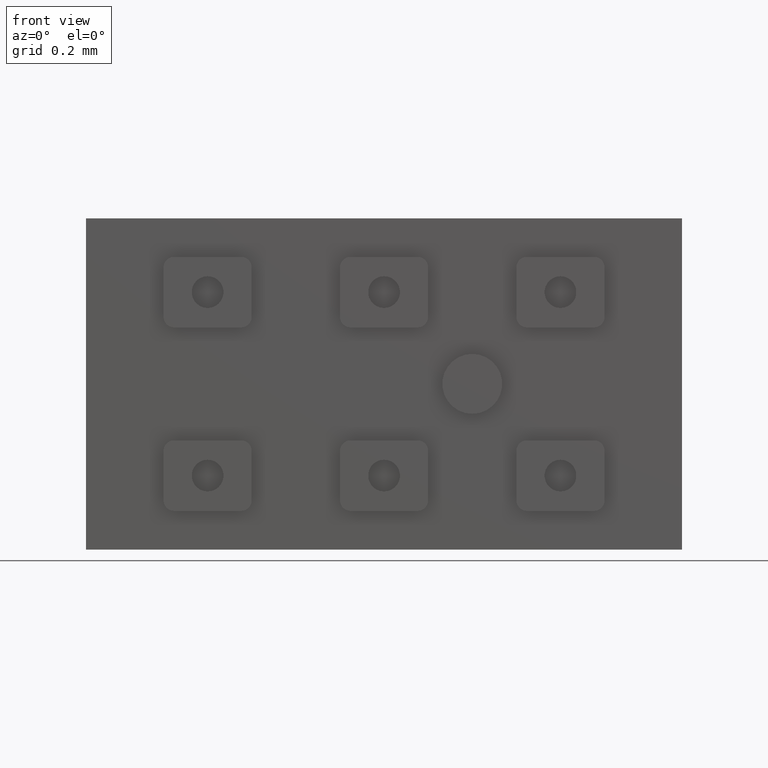
[diagram: clean part render]
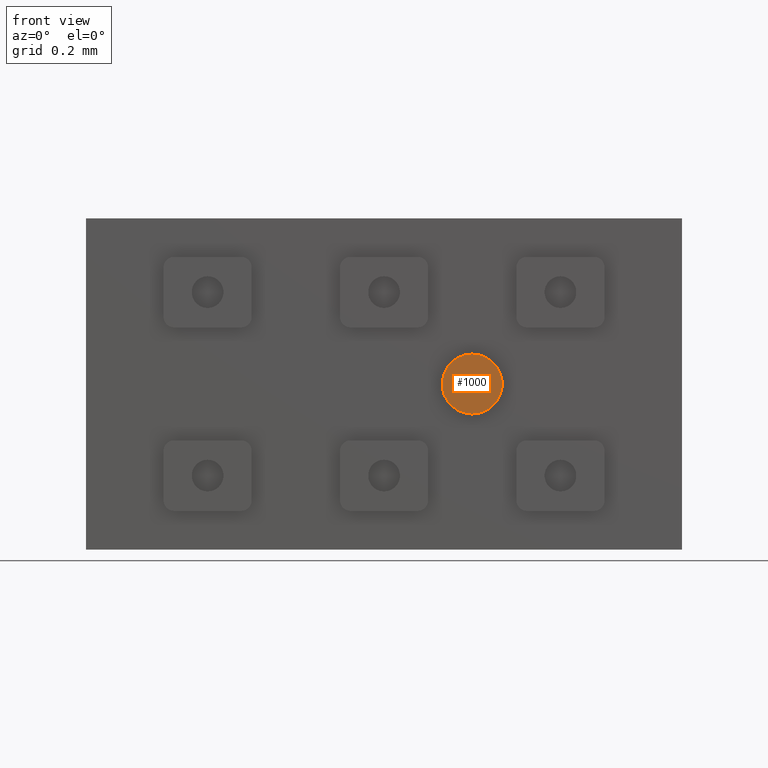
[diagram: same view with one face highlighted and labeled with its STEP entity id]
A machine part, front view. The second image highlights one B-rep face of the part: STEP entity #1000.
In plain terms, the highlighted planar face has unit normal (0, -1, 0).
Its self-contained STEP definition (entity closure, byte-faithful):
#199 = CARTESIAN_POINT ( 'NONE',  ( 0.2500000000000000000, -0.3749999999999999445, 0.000000000000000000 ) ) ;
#312 = VERTEX_POINT ( 'NONE', #651 ) ;
#396 = FACE_OUTER_BOUND ( 'NONE', #636, .T. ) ;
#572 = CIRCLE ( 'NONE', #1004, 0.08500000000000003386 ) ;
#636 = EDGE_LOOP ( 'NONE', ( #2334, #1322 ) ) ;
#651 = CARTESIAN_POINT ( 'NONE',  ( 0.2500000000000000000, -0.3749999999999999445, 0.08500000000000003386 ) ) ;
#687 = CARTESIAN_POINT ( 'NONE',  ( 0.2500000000000000000, -0.3749999999999999445, 0.000000000000000000 ) ) ;
#818 = EDGE_CURVE ( 'NONE', #312, #1636, #901, .T. ) ;
#825 = DIRECTION ( 'NONE',  ( 0.000000000000000000, -1.000000000000000000, 0.000000000000000000 ) ) ;
#901 = CIRCLE ( 'NONE', #1642, 0.08500000000000003386 ) ;
#917 = CARTESIAN_POINT ( 'NONE',  ( 0.2500000000000000000, -0.3749999999999999445, -0.08500000000000003386 ) ) ;
#1000 = ADVANCED_FACE ( 'NONE', ( #396 ), #2208, .T. ) ;
#1004 = AXIS2_PLACEMENT_3D ( 'NONE', #1828, #1084, #1863 ) ;
#1084 = DIRECTION ( 'NONE',  ( 0.000000000000000000, -1.000000000000000000, 0.000000000000000000 ) ) ;
#1322 = ORIENTED_EDGE ( 'NONE', *, *, #2468, .T. ) ;
#1460 = AXIS2_PLACEMENT_3D ( 'NONE', #199, #825, #1800 ) ;
#1478 = DIRECTION ( 'NONE',  ( 0.000000000000000000, -1.000000000000000000, 0.000000000000000000 ) ) ;
#1636 = VERTEX_POINT ( 'NONE', #917 ) ;
#1642 = AXIS2_PLACEMENT_3D ( 'NONE', #687, #1478, #2539 ) ;
#1800 = DIRECTION ( 'NONE',  ( 0.000000000000000000, -0.000000000000000000, -1.000000000000000000 ) ) ;
#1828 = CARTESIAN_POINT ( 'NONE',  ( 0.2500000000000000000, -0.3749999999999999445, 0.000000000000000000 ) ) ;
#1863 = DIRECTION ( 'NONE',  ( 0.000000000000000000, 0.000000000000000000, -1.000000000000000000 ) ) ;
#2208 = PLANE ( 'NONE',  #1460 ) ;
#2334 = ORIENTED_EDGE ( 'NONE', *, *, #818, .T. ) ;
#2468 = EDGE_CURVE ( 'NONE', #1636, #312, #572, .T. ) ;
#2539 = DIRECTION ( 'NONE',  ( 0.000000000000000000, 0.000000000000000000, -1.000000000000000000 ) ) ;